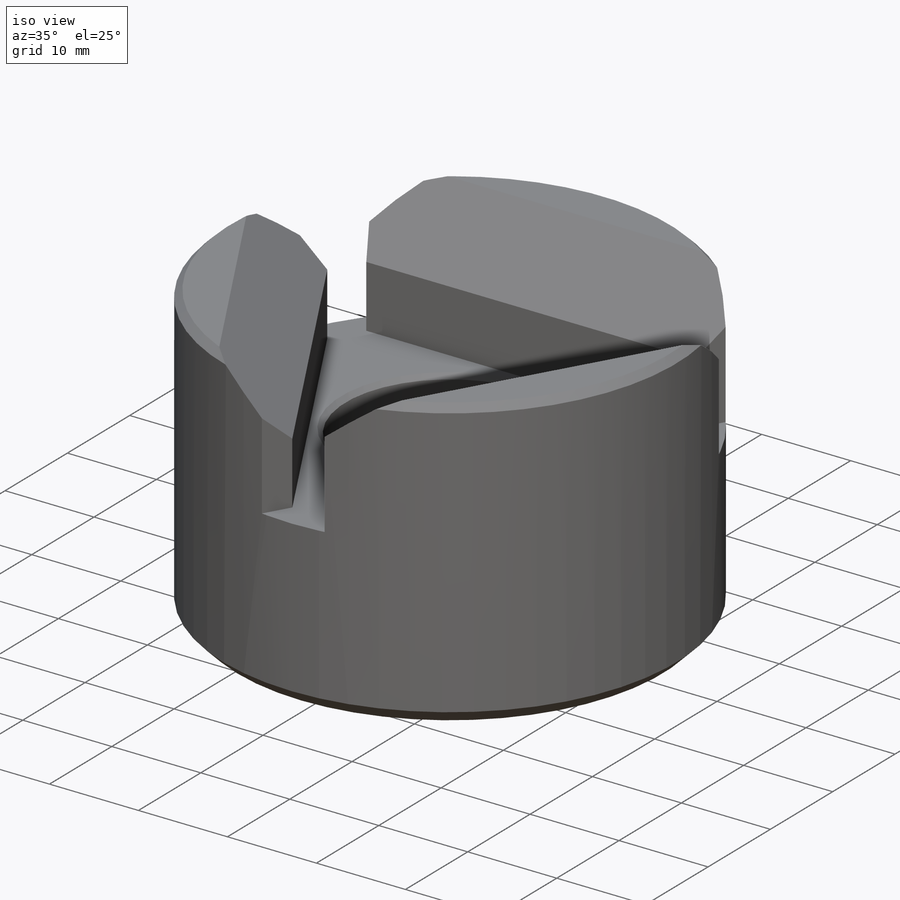
[diagram: iso view]
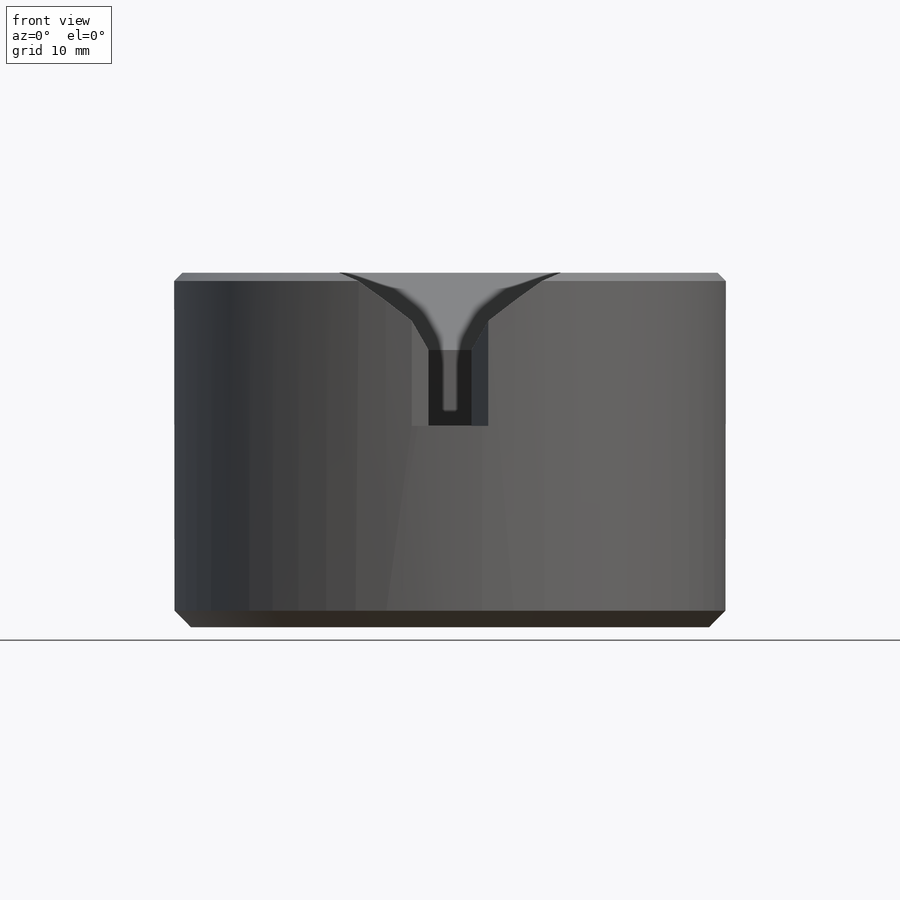
[diagram: front view]
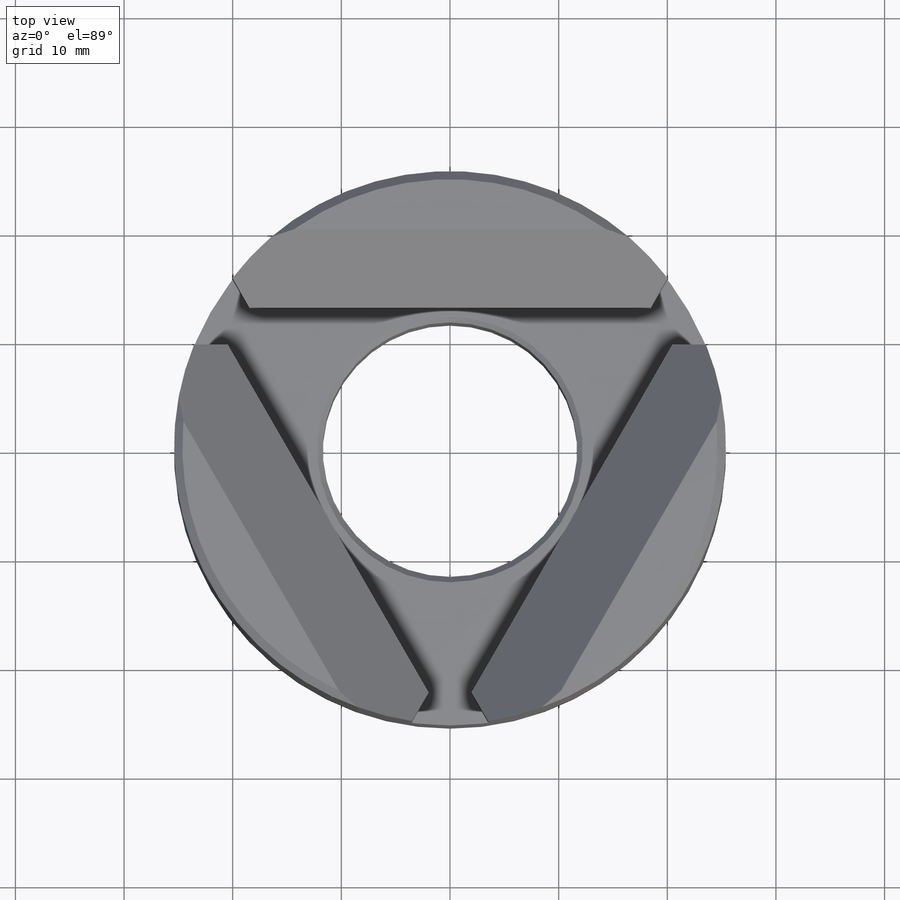
[diagram: top view]
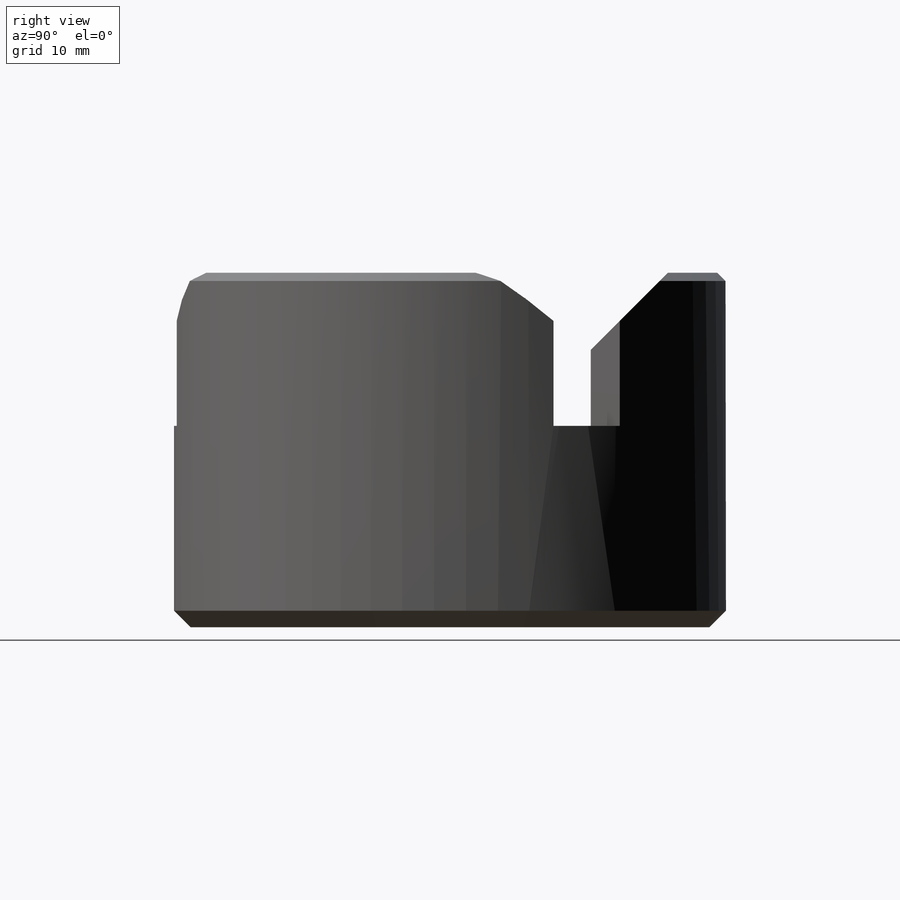
[diagram: right view]
SOLIDWORKS PART (.sldprt)
format: sldprt  version: not decoded by parser v0  size: 510,464 bytes
history: native  units: mm
features: sketch x10, plane x5, chamfer x3, cut_extrude x2, pattern_circular x2, hole x2, thread x2, material x1, extrude x1, cut_revolve x1 + 2 further entries (+9 scaffold rows collapsed)
feature tree (40):
  scaffold x9  (default folders/planes/origin — collapsed)
  material  "Material <not specified>"
  plane  "Plane X-Y"
  plane  "Plane X-Z"
  plane  "Plane Y-Z"
  "Axis - Y"
  "Axis - Z"
  sketch  "Sketch1"  dims[D1=50.8mm]
  extrude  "Extrude1"  Depth=32.639mm
  sketch  "Sketch2"  dims[D1=38.354mm]
  cut_extrude  "Cut-Extrude1"  Depth=18.542mm
  plane  "Plane1"  Offset=6.985mm
  plane  "Plane2"
  sketch  "Sketch3"  dims[D1=3.429mm]
  cut_extrude  "Cut-Extrude2"  [1 undecoded]
  pattern_circular  "CirPattern1"  Count=3 Angle=360deg
  sketch  "Sketch5"
  hole  "1-12 Tapped Hole1"  Diameter=23.41626mm Depth=32.639mm
  sketch  "Sketch9"
  sketch  "Sketch10"  dims[hole-wizard template sketch: 59 standard entries collapsed; hole parameters kept: c18.Thru Tap Drill Dia.=~23.41626mm c18.Thru Tap Drill Depth=32.639mm]
  thread  "Hole Thread1"  Diameter=25.4mm  [1 undecoded]
  sketch  "Sketch6"  dims[c1.D1=0.762mm c1.D2=~6.683588mm c2.D2=45.0deg c2.D3=28.575mm]
  cut_revolve  "Cut-Revolve1"  Angle=360deg
  chamfer  "Chamfer1"  Distance=0.508mm Angle=45deg
  sketch  "Sketch11"  dims[D1=34.29mm D2=7.239mm]
  hole  "5/16-24 Tapped Hole1"  [1 undecoded]
  sketch  "Sketch13"
  thread  "Hole Thread2"  Diameter=12.7mm  [1 undecoded]
  sketch  "Sketch14"  dims[hole-wizard template sketch: 40 standard entries collapsed; hole parameters kept: c13.Tap Drill Depth=15.875mm c13.Near C'Sink Dia.=8.001mm c13.D4=~33.297463mm c13.Near C'Sink Angle=90.0deg c14.D5=~14.816244mm c14.Drill Angle=118.0deg]
  pattern_circular  "CirPattern2"  Count=3 Angle=360deg
  chamfer  "Chamfer2"  Distance=1.524mm Angle=45deg
  chamfer  "Chamfer3"  Distance=0.762mm Angle=45deg
decode coverage: 18 of 23 modeling features carry decoded parameters; 2 rows unclassified (native names shown)
note: ~ marks probable driven/reference dimensions
note: 4 parameter values undecoded
note: suppression state not decoded; provenance and decode notes live in map.json
